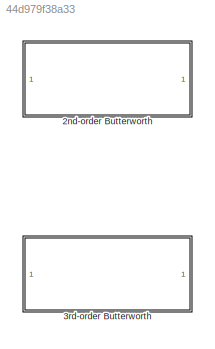
MODEL slx_44d979f38a33
KIND library
CONFIG AbsTol = auto
CONFIG EnableMultiTasking = off
CONFIG FixedStep = auto
CONFIG MaxStep = auto
CONFIG MinStep = auto
CONFIG RelTol = 1e-3
CONFIG SampleTimeConstraint = Unconstrained
CONFIG SolverName = VariableStepAuto
CONFIG StartTime = 0.0
CONFIG StopTime = 10.0
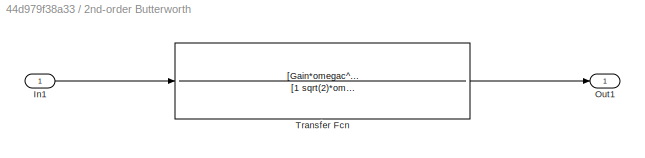
BLOCK [SubSystem] 2nd-order Butterworth
  Ports = [1, 1]
  RequestExecContextInheritance = off
BLOCK [Inport] 2nd-order Butterworth/In1
BLOCK [Outport] 2nd-order Butterworth/Out1
BLOCK [TransferFcn] 2nd-order Butterworth/Transfer Fcn
  Denominator = [1 sqrt(2)*omegac omegac^2]
  Numerator = [Gain*omegac^2]
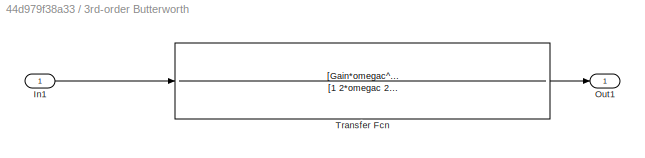
BLOCK [SubSystem] 3rd-order Butterworth
  Ports = [1, 1]
  RequestExecContextInheritance = off
BLOCK [Inport] 3rd-order Butterworth/In1
BLOCK [Outport] 3rd-order Butterworth/Out1
BLOCK [TransferFcn] 3rd-order Butterworth/Transfer Fcn
  Denominator = [1 2*omegac 2*omegac^2 omegac^3]
  Numerator = [Gain*omegac^3]
LINE 2nd-order Butterworth/In1:1 -> 2nd-order Butterworth/Transfer Fcn:1
LINE 2nd-order Butterworth/Transfer Fcn:1 -> 2nd-order Butterworth/Out1:1
LINE 3rd-order Butterworth/In1:1 -> 3rd-order Butterworth/Transfer Fcn:1
LINE 3rd-order Butterworth/Transfer Fcn:1 -> 3rd-order Butterworth/Out1:1
